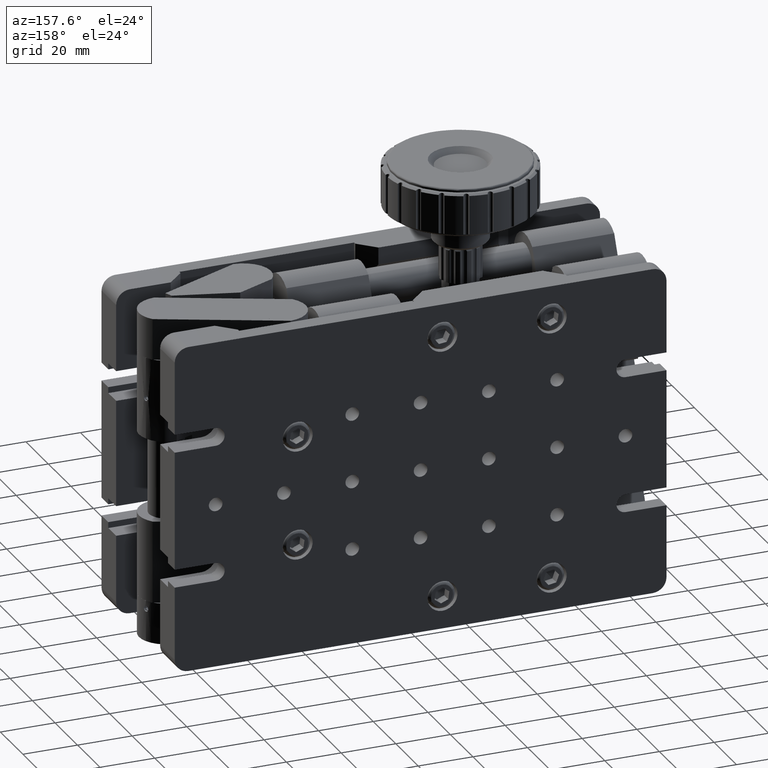
[diagram: clean part render]
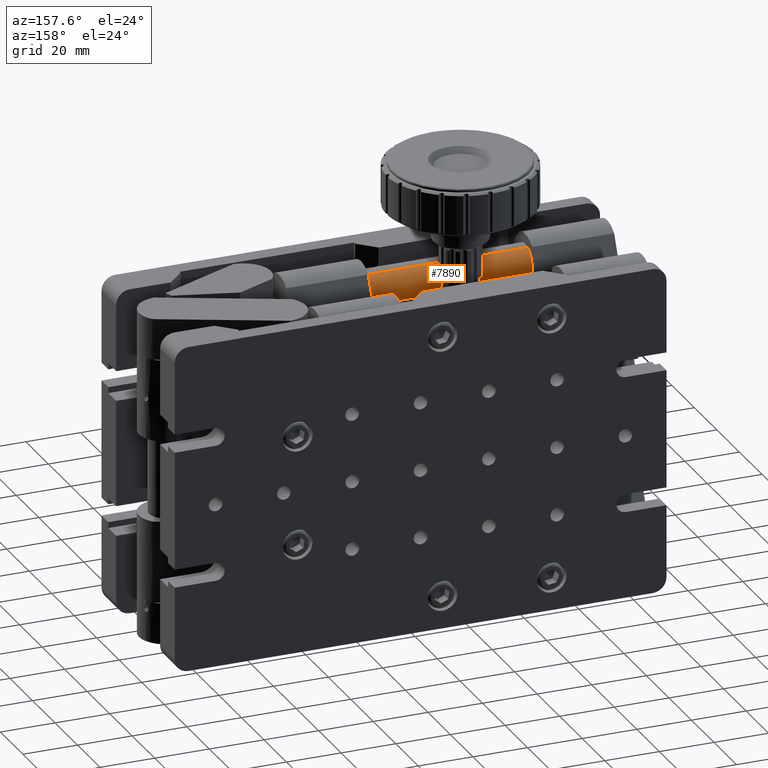
[diagram: same view with one face highlighted and labeled with its STEP entity id]
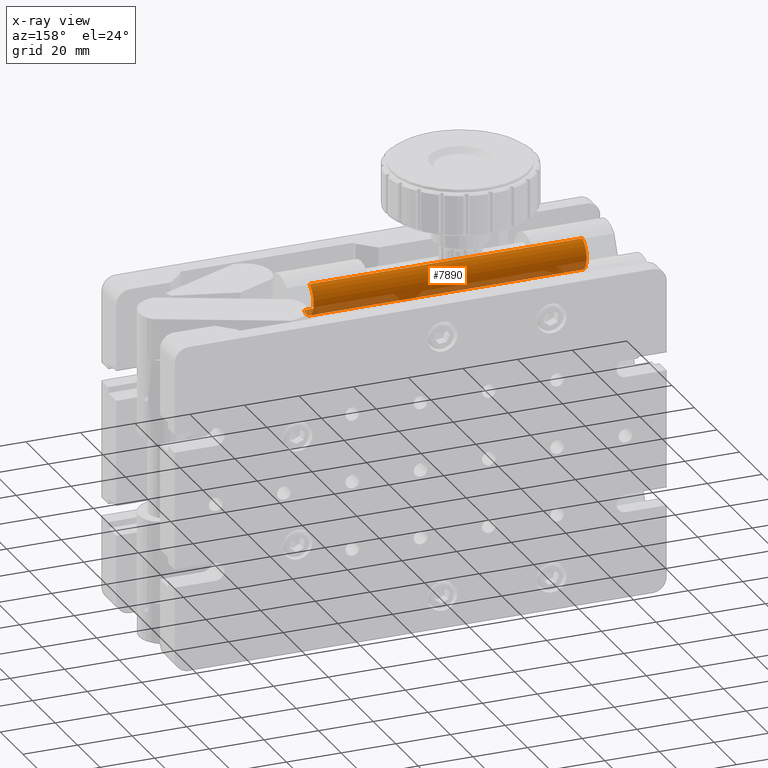
[diagram: x-ray of the same camera — body ghosted, the highlighted face saturated]
A machine part, auxiliary view. The second image highlights one B-rep face of the part: STEP entity #7890.
The next image is the same camera in x-ray: the body ghosted, the highlighted face saturated — about 20% of this face is hidden behind the body in this view.
In plain terms, the highlighted cylindrical surface (edge-blend (fillet) strip) has radius 6.35 mm, axis along (-1, 0, -0).
Its self-contained STEP definition (entity closure, byte-faithful):
#457 = EDGE_CURVE ( 'NONE', #21847, #24705, #52442, .T. ) ;
#1555 = DIRECTION ( 'NONE',  ( 0.0000000000000000000, 0.3854338190367223000, 0.9227354827591530700 ) ) ;
#2606 = ORIENTED_EDGE ( 'NONE', *, *, #28102, .T. ) ;
#3072 = VERTEX_POINT ( 'NONE', #55205 ) ;
#4046 = DIRECTION ( 'NONE',  ( 5.463695987328484000E-016, -0.3854338190367223000, -0.9227354827591530700 ) ) ;
#6160 = DIRECTION ( 'NONE',  ( -1.000000000000000000, 1.103778430468507900E-015, -2.956874512016042200E-016 ) ) ;
#7890 = ADVANCED_FACE ( 'NONE', ( #13475 ), #47764, .T. ) ;
#9595 = EDGE_CURVE ( 'NONE', #39478, #3072, #39995, .T. ) ;
#12822 = ORIENTED_EDGE ( 'NONE', *, *, #44103, .F. ) ;
#13475 = FACE_OUTER_BOUND ( 'NONE', #24047, .T. ) ;
#16420 = DIRECTION ( 'NONE',  ( 1.000000000000000000, -1.103778430468507900E-015, 2.956874512016042200E-016 ) ) ;
#16678 = LINE ( 'NONE', #25721, #19773 ) ;
#17288 = AXIS2_PLACEMENT_3D ( 'NONE', #35418, #16420, #1555 ) ;
#19773 = VECTOR ( 'NONE', #6160, 1000.000000000000000 ) ;
#21359 = DIRECTION ( 'NONE',  ( 1.000000000000000000, -1.103778430468507900E-015, 2.956874512016042200E-016 ) ) ;
#21847 = VERTEX_POINT ( 'NONE', #54160 ) ;
#24047 = EDGE_LOOP ( 'NONE', ( #12822, #56741, #2606, #30140 ) ) ;
#24396 = DIRECTION ( 'NONE',  ( -1.000000000000000000, 1.103778430468507900E-015, -2.956874512016042200E-016 ) ) ;
#24705 = VERTEX_POINT ( 'NONE', #59241 ) ;
#25721 = CARTESIAN_POINT ( 'NONE',  ( 21.99999999999977300, 14.55249524911677400, 42.14062968447927200 ) ) ;
#27489 = AXIS2_PLACEMENT_3D ( 'NONE', #33237, #31939, #4046 ) ;
#28102 = EDGE_CURVE ( 'NONE', #39478, #21847, #16678, .T. ) ;
#29504 = CARTESIAN_POINT ( 'NONE',  ( 21.99999999999976600, 19.44750475088318700, 53.85937031552060700 ) ) ;
#30140 = ORIENTED_EDGE ( 'NONE', *, *, #457, .T. ) ;
#31471 = LINE ( 'NONE', #29504, #35328 ) ;
#31939 = DIRECTION ( 'NONE',  ( -1.000000000000000000, 1.103778430468507900E-015, -2.956874512016042200E-016 ) ) ;
#33237 = CARTESIAN_POINT ( 'NONE',  ( 21.99999999999976900, 16.99999999999997900, 47.99999999999993600 ) ) ;
#35328 = VECTOR ( 'NONE', #24396, 1000.000000000000000 ) ;
#35418 = CARTESIAN_POINT ( 'NONE',  ( -78.00000000000001400, 17.00000000000009600, 47.99999999999987900 ) ) ;
#35848 = DIRECTION ( 'NONE',  ( -5.463695987328484000E-016, 0.3854338190367223000, 0.9227354827591530700 ) ) ;
#39478 = VERTEX_POINT ( 'NONE', #41025 ) ;
#39995 = CIRCLE ( 'NONE', #54630, 6.350000000000049400 ) ;
#41025 = CARTESIAN_POINT ( 'NONE',  ( 21.99999999999976900, 14.55249524911684500, 42.14062968447929300 ) ) ;
#44103 = EDGE_CURVE ( 'NONE', #3072, #24705, #31471, .T. ) ;
#47764 = CYLINDRICAL_SURFACE ( 'NONE', #27489, 6.350000000000049400 ) ;
#50472 = CARTESIAN_POINT ( 'NONE',  ( 21.99999999999976900, 16.99999999999997900, 47.99999999999993600 ) ) ;
#52442 = CIRCLE ( 'NONE', #17288, 6.350000000000049400 ) ;
#54160 = CARTESIAN_POINT ( 'NONE',  ( -78.00000000000001400, 14.55249524911684000, 42.14062968447928600 ) ) ;
#54630 = AXIS2_PLACEMENT_3D ( 'NONE', #50472, #21359, #35848 ) ;
#55205 = CARTESIAN_POINT ( 'NONE',  ( 21.99999999999976900, 19.44750475088322300, 53.85937031552053600 ) ) ;
#56741 = ORIENTED_EDGE ( 'NONE', *, *, #9595, .F. ) ;
#59241 = CARTESIAN_POINT ( 'NONE',  ( -78.00000000000001400, 19.44750475088321600, 53.85937031552052900 ) ) ;